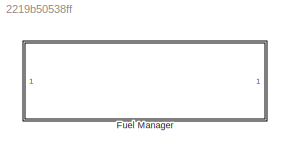
MODEL slx_2219b50538ff
KIND library
CONFIG AbsTol = auto
CONFIG EnableMultiTasking = off
CONFIG FixedStep = auto
CONFIG MaxStep = auto
CONFIG MinStep = auto
CONFIG RelTol = 1e-3
CONFIG SampleTimeConstraint = Unconstrained
CONFIG Solver = VariableStepAuto
CONFIG SolverName = VariableStepAuto
CONFIG StartTime = 0.0
CONFIG StopTime = 10.0
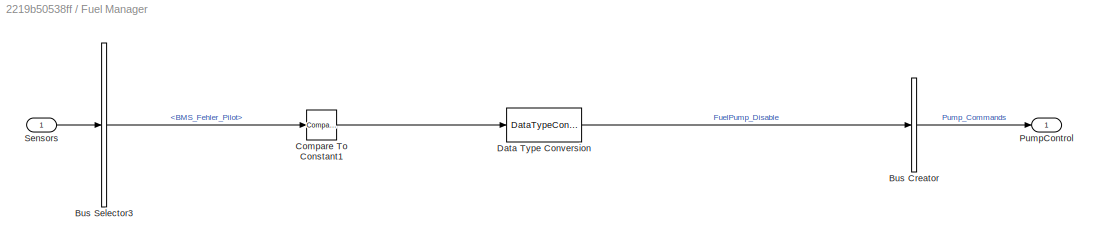
BLOCK [SubSystem] Fuel Manager
  Ports = [1, 1]
  RequestExecContextInheritance = off
  Variant = off
BLOCK [BusCreator] Fuel Manager/Bus Creator
  DisplayOption = bar
  InheritFromInputs = on
  Inputs = 1
  Ports = [1, 1]
BLOCK [BusSelector] Fuel Manager/Bus Selector3
  OutputAsBus = off
  OutputSignals = from_CAN.fromHV_CAN.from_BMSHybrid.BMS_HYB_02.BMS_Fehler_Pilot
  Ports = [1, 1]
BLOCK [Reference] Fuel Manager/Compare To Constant1  REF=simulink/Logic and Bit
Operations/Compare
To Constant
  Ports = [1, 1]
  SourceBlock = simulink/Logic and Bit\nOperations/Compare\nTo Constant
  SourceProductBaseCode = SL
  SourceProductName = Simulink
  SourceType = Compare To Constant
BLOCK [DataTypeConversion] Fuel Manager/Data Type Conversion
  OutDataTypeStr = double
  RndMeth = Floor
  SaturateOnIntegerOverflow = off
BLOCK [Outport] Fuel Manager/PumpControl
  IconDisplay = Port number
BLOCK [Inport] Fuel Manager/Sensors
  IconDisplay = Port number
LINE Fuel Manager/Bus Creator:1 -> Fuel Manager/PumpControl:1
LINE Fuel Manager/Bus Selector3:1 -> Fuel Manager/Compare To Constant1:1
LINE Fuel Manager/Compare To Constant1:1 -> Fuel Manager/Data Type Conversion:1
LINE Fuel Manager/Data Type Conversion:1 -> Fuel Manager/Bus Creator:1
LINE Fuel Manager/Sensors:1 -> Fuel Manager/Bus Selector3:1
